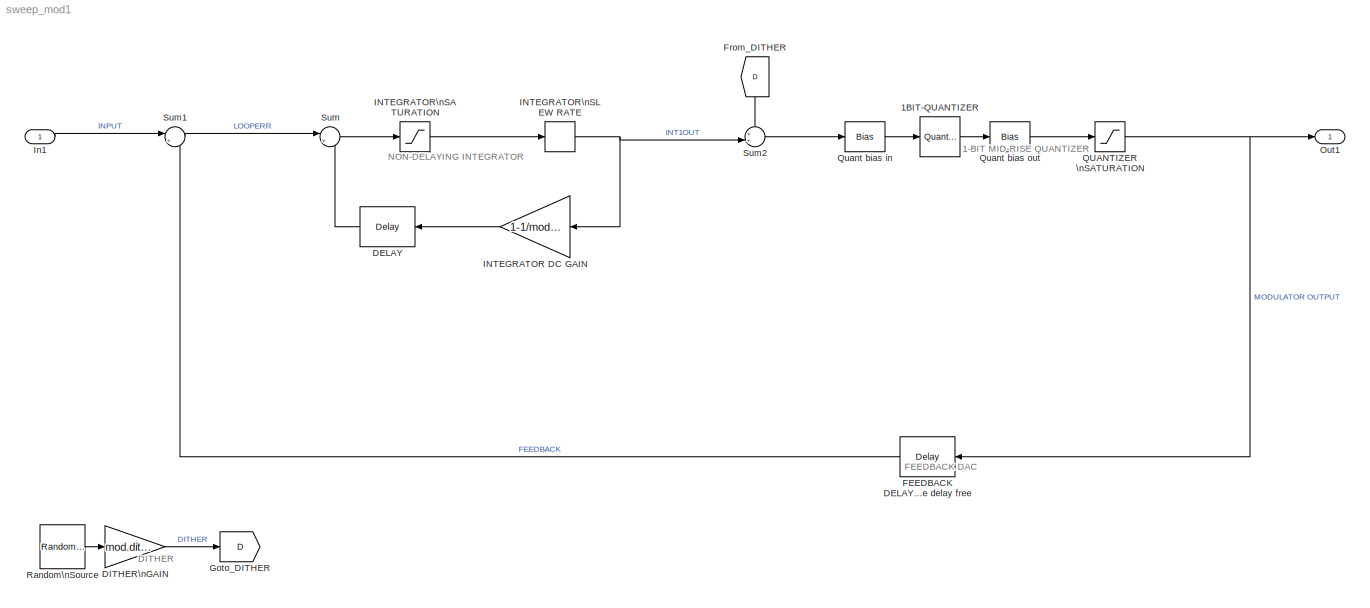
MODEL sweep_mod1
KIND model
BLOCK [Quantizer] 1BIT-QUANTIZER
  AttributesFormatString = step = 2
  QuantizationInterval = 2
  SID = 59
  SampleTime = 1/Fs
BLOCK [Reference] DELAY  REF=dspsigops/Delay
  InputProcessing = Inherited (this choice will be removed - see release notes)
  Ports = [1, 1]
  SID = 39
  SourceBlock = dspsigops/Delay
  SourceType = Delay
  UserData = DataTag0
  UserDataPersistent = on
  delay = 1
  dif_ic_for_ch = off
  dif_ic_for_dly = off
  dly_unit = Samples
  ic = 0
  ic_detail = off
  reset_popup = None
BLOCK [Gain] DITHER\nGAIN
  Gain = mod.dither
  OutDataTypeStr = Inherit: Inherit via internal rule
  ParamDataTypeStr = Inherit: Inherit via internal rule
  SID = 29
  SampleTime = 1/Fs
  SaturateOnIntegerOverflow = off
BLOCK [Reference] FEEDBACK DELAY\nNecessary to avoid a delay-free\nloop as integrator and\nquantizer are delay free  REF=dspsigops/Delay
  InputProcessing = Inherited (this choice will be removed - see release notes)
  Ports = [1, 1]
  SID = 41
  SourceBlock = dspsigops/Delay
  SourceType = Delay
  UserData = DataTag1
  UserDataPersistent = on
  delay = 1
  dif_ic_for_ch = off
  dif_ic_for_dly = off
  dly_unit = Samples
  ic = 0
  ic_detail = off
  reset_popup = None
BLOCK [From] From_DITHER
  GotoTag = D
  SID = 53
BLOCK [Goto] Goto_DITHER
  GotoTag = D
  SID = 52
BLOCK [Gain] INTEGRATOR DC GAIN
  AttributesFormatString = Integrator leakage\\n(model finite integrator dc/LF\\ngain in analog modulators)
  Gain = 1-1/mod.igain1
  OutDataTypeStr = Inherit: Inherit via internal rule
  ParamDataTypeStr = Inherit: Inherit via internal rule
  SID = 32
  SampleTime = 1/Fs
  SaturateOnIntegerOverflow = off
BLOCK [Saturate] INTEGRATOR\nSATURATION
  AttributesFormatString = Real integrators will have output\\nswing limits (analog signal headroom\\nor digital accumulator min/max values)
  InputPortMap = u0
  LowerLimit = -(mod.isat1)
  Ports = [1, 1]
  SID = 36
  SampleTime = 1/Fs
  UpperLimit = mod.isat1
BLOCK [RateLimiter] INTEGRATOR\nSLEW RATE
  AttributesFormatString = ...and may suffer from\\npoor slew rate
  FallingSlewLimit = -(mod.isr1)
  RisingSlewLimit = mod.isr1
  SID = 84
  SampleTimeMode = inherited
BLOCK [Inport] In1
  IconDisplay = Port number
  SID = 97
BLOCK [Outport] Out1
  IconDisplay = Port number
  SID = 98
BLOCK [Saturate] QUANTIZER \nSATURATION
  AttributesFormatString = Limit quantizer\\noutput
  InputPortMap = u0
  LowerLimit = -(mod.qsatout1)
  Ports = [1, 1]
  SID = 33
  SampleTime = 1/Fs
  UpperLimit = mod.qsatout1
BLOCK [Bias] Quant bias in
  AttributesFormatString = Need offset to give\\nMID-RISE quantiser
  Bias = 1
  SID = 57
  SaturateOnIntegerOverflow = off
BLOCK [Bias] Quant bias out
  AttributesFormatString = Shift outputs to\\n..., -2, 1, 1, ...
  Bias = -1
  SID = 58
  SaturateOnIntegerOverflow = off
BLOCK [Reference] Random\nSource  REF=dspsrcs4/Random\nSource
  CltLength = 12
  DataType = Double
  IsInherit = off
  MaxVal = 1
  MeanVal = 0
  MinVal = -1
  NormMethod = Ziggurat
  OutComplex = Real
  Ports = [0, 1]
  RepMode = Not repeatable
  SID = 25
  SampFrame = 1
  SampMode = Discrete
  SampTime = 1/Fs
  SourceBlock = dspsrcs4/Random\nSource
  SourceType = Random Source
  SrcType = Uniform
  UserData = DataTag2
  UserDataPersistent = on
  VarVal = 1
  rawSeed = 1
BLOCK [Sum] Sum
  AttributesFormatString = Integrator\\nsummer
  IconShape = round
  InputSameDT = off
  Inputs = |++
  OutDataTypeStr = Inherit: Inherit via internal rule
  Ports = [2, 1]
  SID = 3
  SampleTime = 1/Fs
  SaturateOnIntegerOverflow = off
BLOCK [Sum] Sum1
  AttributesFormatString = Modulator Input\\nLoop Error (input - fbk)
  IconShape = round
  InputSameDT = off
  Inputs = |+-
  OutDataTypeStr = Inherit: Inherit via internal rule
  Ports = [2, 1]
  SID = 7
  SampleTime = 1/Fs
  SaturateOnIntegerOverflow = off
BLOCK [Sum] Sum2
  IconShape = round
  InputSameDT = off
  Inputs = ++|
  OutDataTypeStr = Inherit: Inherit via internal rule
  Ports = [2, 1]
  SID = 30
  SampleTime = 1/Fs
  SaturateOnIntegerOverflow = off
ANNOTATION (root): 1-BIT MID-RISE QUANTIZER \n\n\n\n\n\n\n\n
ANNOTATION (root): DITHER \n\n\n\n\n\n
ANNOTATION (root): NON-DELAYING INTEGRATOR \n\n\n\n\n\n\n\n\n\n \n \n\n\n
ANNOTATION (root): FEEDBACK DAC \n\n\n\n\n\n
LINE 1BIT-QUANTIZER:1 -> Quant bias out:1
LINE DELAY:1 -> Sum:2
LINE DITHER\nGAIN:1 -> Goto_DITHER:1
LINE FEEDBACK DELAY\nNecessary to avoid a delay-free\nloop as integrator and\nquantizer are delay free:1 -> Sum1:2
LINE From_DITHER:1 -> Sum2:1
LINE INTEGRATOR DC GAIN:1 -> DELAY:1
LINE INTEGRATOR\nSATURATION:1 -> INTEGRATOR\nSLEW RATE:1
NET INTEGRATOR\nSLEW RATE:1 -> INTEGRATOR DC GAIN:1, Sum2:2
LINE In1:1 -> Sum1:1
NET QUANTIZER \nSATURATION:1 -> FEEDBACK DELAY\nNecessary to avoid a delay-free\nloop as integrator and\nquantizer are delay free:1, Out1:1
LINE Quant bias in:1 -> 1BIT-QUANTIZER:1
LINE Quant bias out:1 -> QUANTIZER \nSATURATION:1
LINE Random\nSource:1 -> DITHER\nGAIN:1
LINE Sum1:1 -> Sum:1
LINE Sum2:1 -> Quant bias in:1
LINE Sum:1 -> INTEGRATOR\nSATURATION:1
note: NET lines group one-source signal fan-out (src -> all destinations, sorted); 1:1 wires keep LINE
